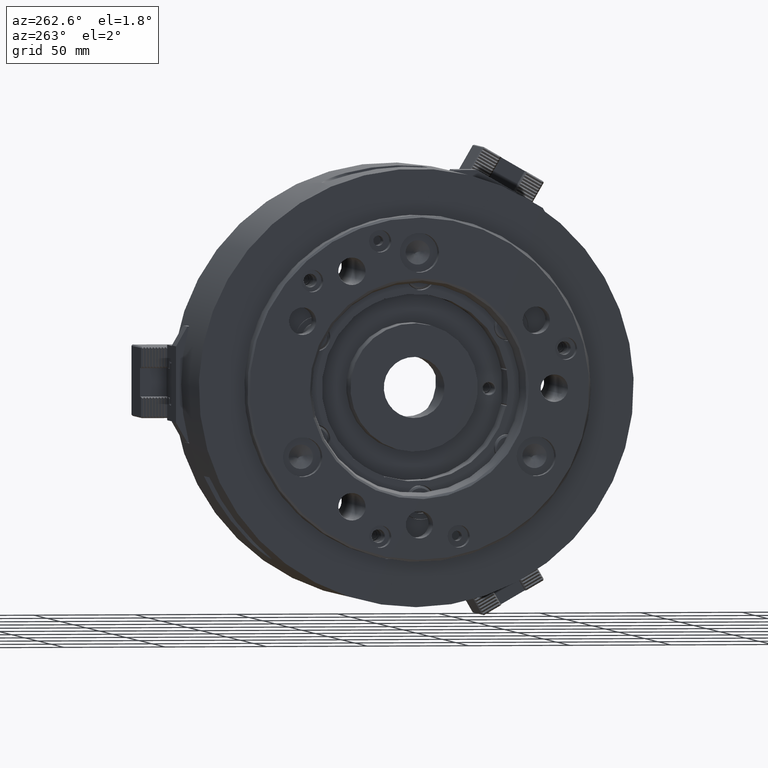
[diagram: clean part render]
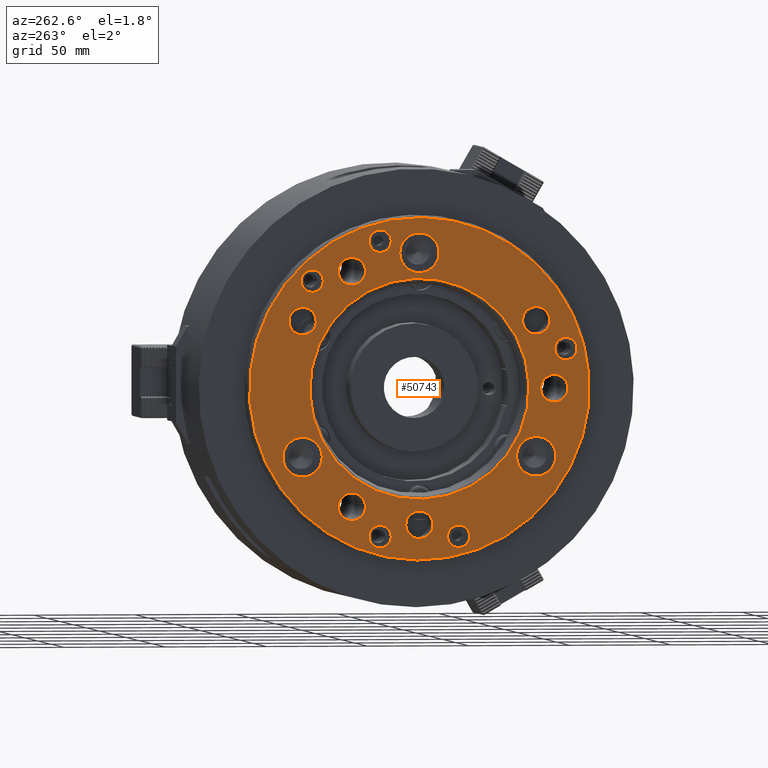
[diagram: same view with one face highlighted and labeled with its STEP entity id]
A machine part, auxiliary view. The second image highlights one B-rep face of the part: STEP entity #50743.
In plain terms, the highlighted planar face has unit normal (-1, 0, 0).
Its self-contained STEP definition (entity closure, byte-faithful):
#13085=PLANE('',#54004);
#15851=ORIENTED_EDGE('',*,*,#30608,.F.);
#15852=ORIENTED_EDGE('',*,*,#30607,.T.);
#15853=ORIENTED_EDGE('',*,*,#30598,.F.);
#15854=ORIENTED_EDGE('',*,*,#30596,.F.);
#15855=ORIENTED_EDGE('',*,*,#30594,.F.);
#15856=ORIENTED_EDGE('',*,*,#30592,.F.);
#15857=ORIENTED_EDGE('',*,*,#30590,.F.);
#15858=ORIENTED_EDGE('',*,*,#30588,.F.);
#15859=ORIENTED_EDGE('',*,*,#30584,.T.);
#15860=ORIENTED_EDGE('',*,*,#30580,.T.);
#15861=ORIENTED_EDGE('',*,*,#30576,.T.);
#15862=ORIENTED_EDGE('',*,*,#30572,.T.);
#15863=ORIENTED_EDGE('',*,*,#30568,.T.);
#15864=ORIENTED_EDGE('',*,*,#30566,.T.);
#15865=ORIENTED_EDGE('',*,*,#30563,.T.);
#15866=ORIENTED_EDGE('',*,*,#30560,.T.);
#30560=EDGE_CURVE('',#42111,#42111,#37955,.T.);
#30563=EDGE_CURVE('',#42115,#42115,#37958,.T.);
#30566=EDGE_CURVE('',#42119,#42119,#37961,.T.);
#30568=EDGE_CURVE('',#42121,#42121,#37963,.T.);
#30572=EDGE_CURVE('',#42125,#42125,#37967,.T.);
#30576=EDGE_CURVE('',#42129,#42129,#37971,.T.);
#30580=EDGE_CURVE('',#42133,#42133,#37975,.T.);
#30584=EDGE_CURVE('',#42137,#42137,#37979,.T.);
#30588=EDGE_CURVE('',#42141,#42141,#37983,.T.);
#30590=EDGE_CURVE('',#42143,#42143,#37985,.T.);
#30592=EDGE_CURVE('',#42145,#42145,#37987,.T.);
#30594=EDGE_CURVE('',#42147,#42147,#37989,.T.);
#30596=EDGE_CURVE('',#42149,#42149,#37991,.T.);
#30598=EDGE_CURVE('',#42151,#42151,#37993,.T.);
#30607=EDGE_CURVE('',#42160,#42160,#38002,.T.);
#30608=EDGE_CURVE('',#42161,#42161,#38003,.T.);
#37955=CIRCLE('',#53921,9.73);
#37958=CIRCLE('',#53927,9.73);
#37961=CIRCLE('',#53933,9.73);
#37963=CIRCLE('',#53937,5.5);
#37967=CIRCLE('',#53944,5.5);
#37971=CIRCLE('',#53951,5.5);
#37975=CIRCLE('',#53958,5.5);
#37979=CIRCLE('',#53965,5.5);
#37983=CIRCLE('',#53972,6.75);
#37985=CIRCLE('',#53975,6.75);
#37987=CIRCLE('',#53978,6.75);
#37989=CIRCLE('',#53981,6.75);
#37991=CIRCLE('',#53984,6.75);
#37993=CIRCLE('',#53987,6.75);
#38002=CIRCLE('',#54003,84.);
#38003=CIRCLE('',#54005,54.1885);
#38878=EDGE_LOOP('',(#15851));
#38879=EDGE_LOOP('',(#15852));
#38880=EDGE_LOOP('',(#15853));
#38881=EDGE_LOOP('',(#15854));
#38882=EDGE_LOOP('',(#15855));
#38883=EDGE_LOOP('',(#15856));
#38884=EDGE_LOOP('',(#15857));
#38885=EDGE_LOOP('',(#15858));
#38886=EDGE_LOOP('',(#15859));
#38887=EDGE_LOOP('',(#15860));
#38888=EDGE_LOOP('',(#15861));
#38889=EDGE_LOOP('',(#15862));
#38890=EDGE_LOOP('',(#15863));
#38891=EDGE_LOOP('',(#15864));
#38892=EDGE_LOOP('',(#15865));
#38893=EDGE_LOOP('',(#15866));
#42111=VERTEX_POINT('',#71524);
#42115=VERTEX_POINT('',#71534);
#42119=VERTEX_POINT('',#71544);
#42121=VERTEX_POINT('',#71550);
#42125=VERTEX_POINT('',#71561);
#42129=VERTEX_POINT('',#71572);
#42133=VERTEX_POINT('',#71583);
#42137=VERTEX_POINT('',#71594);
#42141=VERTEX_POINT('',#71605);
#42143=VERTEX_POINT('',#71610);
#42145=VERTEX_POINT('',#71615);
#42147=VERTEX_POINT('',#71620);
#42149=VERTEX_POINT('',#71625);
#42151=VERTEX_POINT('',#71630);
#42160=VERTEX_POINT('',#71655);
#42161=VERTEX_POINT('',#71658);
#47310=FACE_BOUND('',#38878,.T.);
#47311=FACE_BOUND('',#38879,.T.);
#47312=FACE_BOUND('',#38880,.T.);
#47313=FACE_BOUND('',#38881,.T.);
#47314=FACE_BOUND('',#38882,.T.);
#47315=FACE_BOUND('',#38883,.T.);
#47316=FACE_BOUND('',#38884,.T.);
#47317=FACE_BOUND('',#38885,.T.);
#47318=FACE_BOUND('',#38886,.T.);
#47319=FACE_BOUND('',#38887,.T.);
#47320=FACE_BOUND('',#38888,.T.);
#47321=FACE_BOUND('',#38889,.T.);
#47322=FACE_BOUND('',#38890,.T.);
#47323=FACE_BOUND('',#38891,.T.);
#47324=FACE_BOUND('',#38892,.T.);
#47325=FACE_BOUND('',#38893,.T.);
#50743=ADVANCED_FACE('',(#47310,#47311,#47312,#47313,#47314,#47315,#47316,
#47317,#47318,#47319,#47320,#47321,#47322,#47323,#47324,#47325),#13085,
 .T.);
#53921=AXIS2_PLACEMENT_3D('',#71523,#57625,#57626);
#53927=AXIS2_PLACEMENT_3D('',#71533,#57637,#57638);
#53933=AXIS2_PLACEMENT_3D('',#71543,#57649,#57650);
#53937=AXIS2_PLACEMENT_3D('',#71549,#57657,#57658);
#53944=AXIS2_PLACEMENT_3D('',#71560,#57671,#57672);
#53951=AXIS2_PLACEMENT_3D('',#71571,#57685,#57686);
#53958=AXIS2_PLACEMENT_3D('',#71582,#57699,#57700);
#53965=AXIS2_PLACEMENT_3D('',#71593,#57713,#57714);
#53972=AXIS2_PLACEMENT_3D('',#71604,#57727,#57728);
#53975=AXIS2_PLACEMENT_3D('',#71609,#57733,#57734);
#53978=AXIS2_PLACEMENT_3D('',#71614,#57739,#57740);
#53981=AXIS2_PLACEMENT_3D('',#71619,#57745,#57746);
#53984=AXIS2_PLACEMENT_3D('',#71624,#57751,#57752);
#53987=AXIS2_PLACEMENT_3D('',#71629,#57757,#57758);
#54003=AXIS2_PLACEMENT_3D('',#71654,#57789,#57790);
#54004=AXIS2_PLACEMENT_3D('',#71656,#57791,#57792);
#54005=AXIS2_PLACEMENT_3D('',#71657,#57793,#57794);
#57625=DIRECTION('',(1.,0.,0.));
#57626=DIRECTION('',(0.,0.965925826289065,-0.258819045102534));
#57637=DIRECTION('',(1.,0.,0.));
#57638=DIRECTION('',(0.,0.965925826289065,-0.258819045102534));
#57649=DIRECTION('',(1.,0.,0.));
#57650=DIRECTION('',(0.,0.965925826289065,-0.258819045102534));
#57657=DIRECTION('',(1.,0.,0.));
#57658=DIRECTION('',(0.,0.965925826289065,-0.258819045102534));
#57671=DIRECTION('',(1.,0.,0.));
#57672=DIRECTION('',(0.,0.965925826289065,-0.258819045102534));
#57685=DIRECTION('',(1.,0.,0.));
#57686=DIRECTION('',(0.,0.965925826289065,-0.258819045102534));
#57699=DIRECTION('',(1.,0.,0.));
#57700=DIRECTION('',(0.,0.965925826289065,-0.258819045102534));
#57713=DIRECTION('',(1.,0.,0.));
#57714=DIRECTION('',(0.,0.965925826289065,-0.258819045102534));
#57727=DIRECTION('',(-1.,0.,0.));
#57728=DIRECTION('',(0.,0.965925826289065,-0.258819045102534));
#57733=DIRECTION('',(-1.,0.,0.));
#57734=DIRECTION('',(0.,0.965925826289065,-0.258819045102534));
#57739=DIRECTION('',(-1.,0.,0.));
#57740=DIRECTION('',(0.,0.965925826289065,-0.258819045102534));
#57745=DIRECTION('',(-1.,0.,0.));
#57746=DIRECTION('',(0.,0.965925826289065,-0.258819045102534));
#57751=DIRECTION('',(-1.,0.,0.));
#57752=DIRECTION('',(0.,0.965925826289065,-0.258819045102534));
#57757=DIRECTION('',(-1.,0.,0.));
#57758=DIRECTION('',(0.,0.965925826289065,-0.258819045102534));
#57789=DIRECTION('',(-1.,0.,0.));
#57790=DIRECTION('',(0.,0.965925826289065,-0.258819045102534));
#57791=DIRECTION('',(-1.,0.,0.));
#57792=DIRECTION('',(0.,0.965925826289065,-0.258819045102534));
#57793=DIRECTION('',(-1.,0.,0.));
#57794=DIRECTION('',(0.,0.965925826289065,-0.258819045102534));
#71523=CARTESIAN_POINT('',(-112.,-57.742243797328,-33.3374999999992));
#71524=CARTESIAN_POINT('',(-112.,-48.3437855075353,-35.8558093088469));
#71533=CARTESIAN_POINT('',(-112.,8.74300631892311E-13,66.675));
#71534=CARTESIAN_POINT('',(-112.,9.39845828979348,64.1566906911524));
#71543=CARTESIAN_POINT('',(-112.,57.7422437973269,-33.3375000000008));
#71544=CARTESIAN_POINT('',(-112.,67.1407020871196,-35.8558093088484));
#71549=CARTESIAN_POINT('',(-112.,-19.41142838269,-72.4444369716798));
#71550=CARTESIAN_POINT('',(-112.,-14.0988363381002,-73.8679417197437));
#71560=CARTESIAN_POINT('',(-112.,19.41142838269,72.4444369716799));
#71561=CARTESIAN_POINT('',(-112.,24.7240204272799,71.020932223616));
#71571=CARTESIAN_POINT('',(-112.,-72.4444369716798,19.4114283826901));
#71572=CARTESIAN_POINT('',(-112.,-67.13184492709,17.9879236346261));
#71582=CARTESIAN_POINT('',(-112.,53.0330085889919,53.0330085889904));
#71583=CARTESIAN_POINT('',(-112.,58.3456006335817,51.6095038409264));
#71593=CARTESIAN_POINT('',(-112.,19.4114283826881,-72.4444369716804));
#71594=CARTESIAN_POINT('',(-112.,24.7240204272779,-73.8679417197443));
#71604=CARTESIAN_POINT('',(-112.,57.7422437973279,33.3374999999993));
#71605=CARTESIAN_POINT('',(-112.,64.262243124779,31.5904714455572));
#71609=CARTESIAN_POINT('',(-112.,33.3375000000007,57.7422437973271));
#71610=CARTESIAN_POINT('',(-112.,39.8574993274519,55.995215242885));
#71614=CARTESIAN_POINT('',(-112.,-57.7422437973269,33.3375000000009));
#71615=CARTESIAN_POINT('',(-112.,-51.2222444698758,31.5904714455588));
#71619=CARTESIAN_POINT('',(-112.,-66.675,9.17668718791731E-13));
#71620=CARTESIAN_POINT('',(-112.,-60.1550006725488,-1.74702855444119));
#71624=CARTESIAN_POINT('',(-112.,-8.74300631892311E-13,-66.6749999999999));
#71625=CARTESIAN_POINT('',(-112.,6.51999932745031,-68.4220285544421));
#71629=CARTESIAN_POINT('',(-112.,33.3374999999993,-57.7422437973278));
#71630=CARTESIAN_POINT('',(-112.,39.8574993274505,-59.4892723517699));
#71654=CARTESIAN_POINT('',(-112.,1.78647059178206E-29,4.33680868994202E-14));
#71655=CARTESIAN_POINT('',(-112.,81.1377694082814,-21.7407997886128));
#71656=CARTESIAN_POINT('',(-112.,52.342071637865,-14.0250158255386));
#71657=CARTESIAN_POINT('',(-112.,1.78647059178206E-29,4.33680868994202E-14));
#71658=CARTESIAN_POINT('',(-112.,52.342071637865,-14.0250158255386));